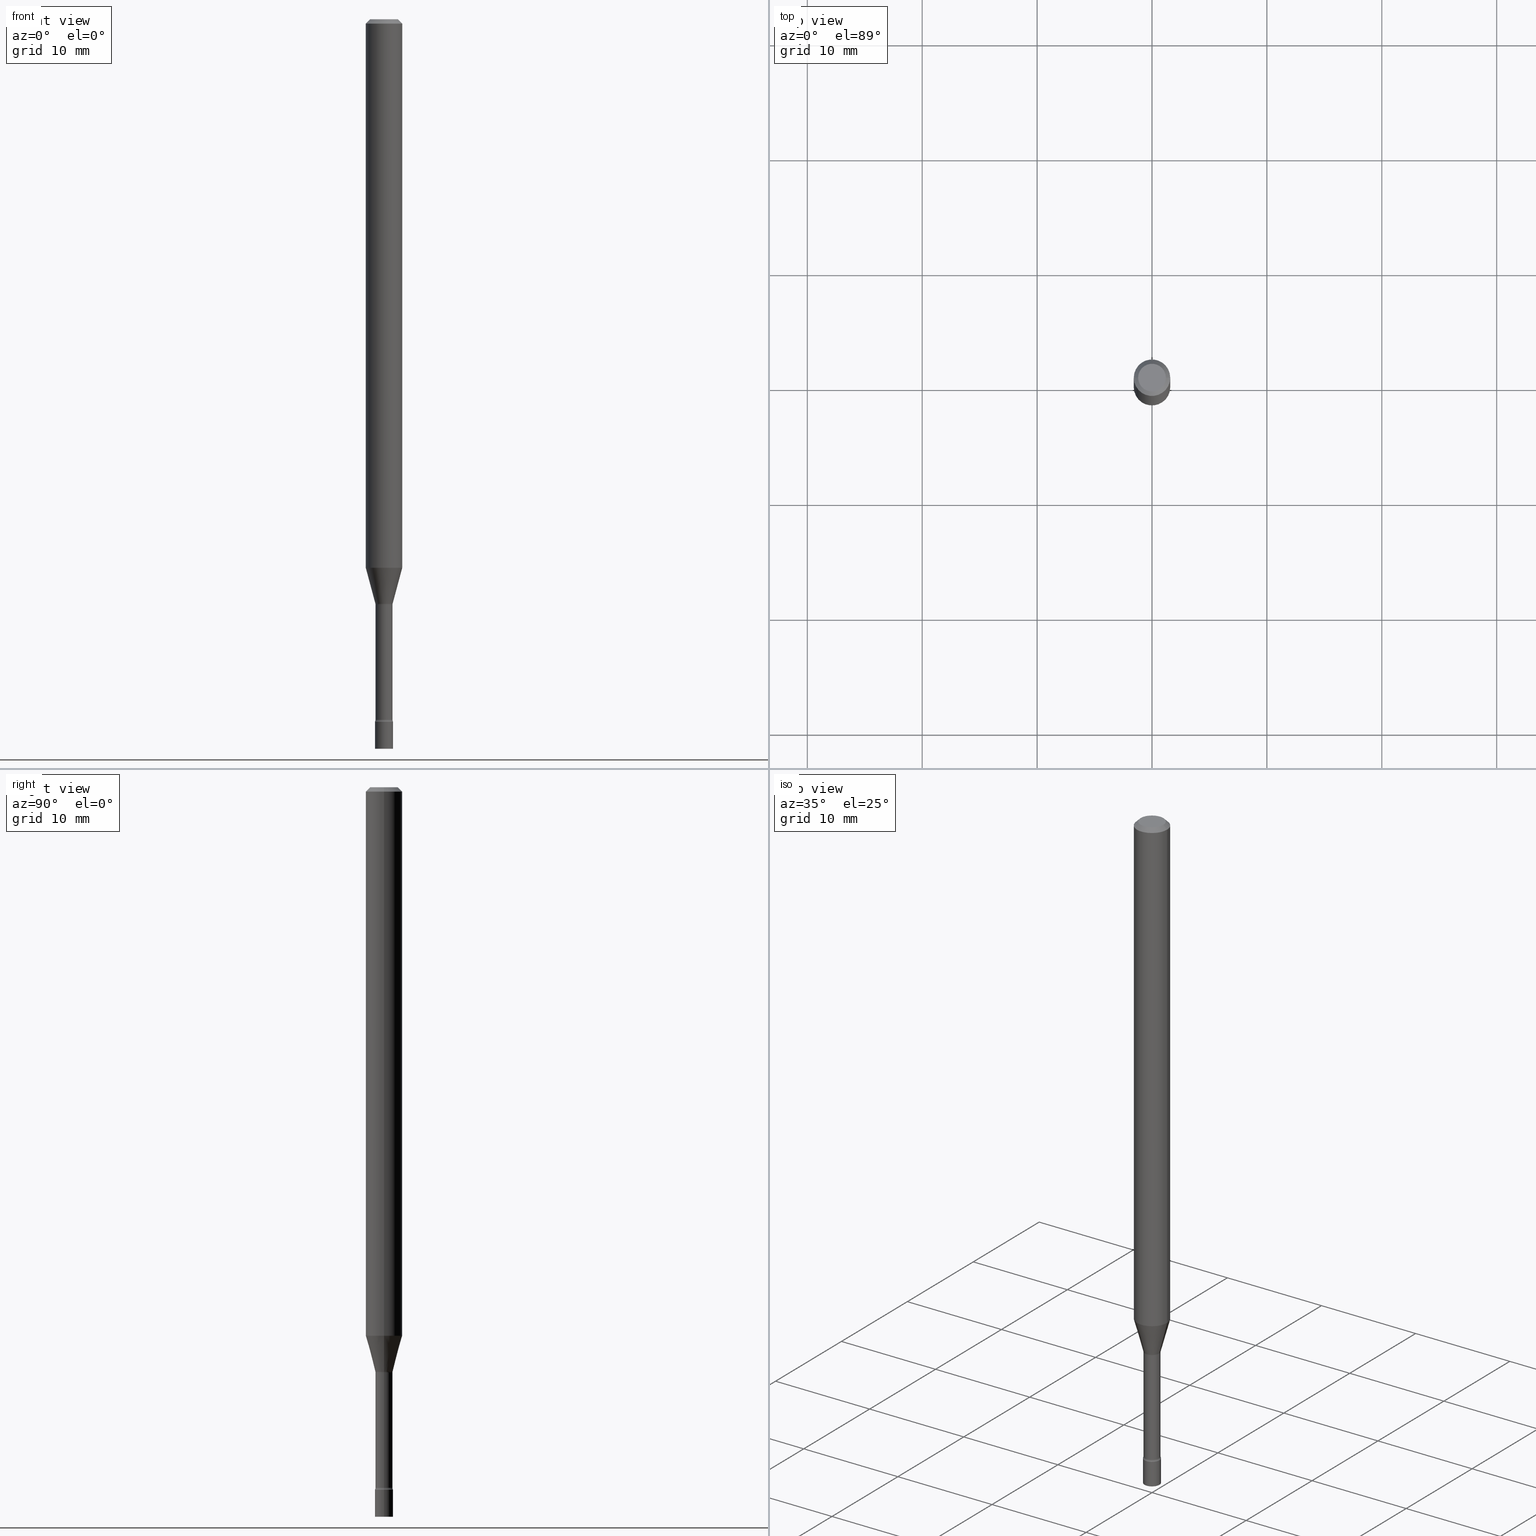
[diagram: canonical four-view strip — front | top / right | iso, engineering-drawing reading convention]
A machine part, canonical four-view strip (front | top / right | iso — engineering-drawing reading convention). The complete STEP part file that produces these views, byte-faithful:
ISO-10303-21;
HEADER;
FILE_DESCRIPTION (( 'STEP AP203' ),
    '1' );
FILE_NAME ('09692.STEP',
    '2024-03-09T00:53:26',
    ( '' ),
    ( '' ),
    'SwSTEP 2.0',
    'SolidWorks 2023',
    '' );
FILE_SCHEMA (( 'CONFIG_CONTROL_DESIGN' ));
ENDSEC;

DATA;
#1 = EDGE_LOOP ( 'NONE', ( #254, #405 ) ) ;
#2 = DIRECTION ( 'NONE',  ( 1.000000000000000000, -6.982962677686266711E-15, 0.000000000000000000 ) ) ;
#3 = DIRECTION ( 'NONE',  ( -2.445468806185136597E-29, 3.491481338843145583E-15, 1.000000000000000000 ) ) ;
#4 = APPROVAL_DATE_TIME ( #408, #460 ) ;
#5 = ORIENTED_EDGE ( 'NONE', *, *, #244, .T. ) ;
#6 = CARTESIAN_POINT ( 'NONE',  ( 7.070806723891919892E-46, -1.009523804376275404E-31, -2.891391092786900929E-17 ) ) ;
#7 = PERSON_AND_ORGANIZATION_ROLE ( 'classification_officer' ) ;
#8 = CIRCLE ( 'NONE', #73, 0.02914999999999999883 ) ;
#9 = EDGE_LOOP ( 'NONE', ( #376, #499, #269, #226 ) ) ;
#10 = CARTESIAN_POINT ( 'NONE',  ( 4.896054760217936554E-29, -6.990268608628051909E-15, -2.002092501787273271 ) ) ;
#11 = PERSON_AND_ORGANIZATION ( #447, #80 ) ;
#12 = ORIENTED_EDGE ( 'NONE', *, *, #281, .F. ) ;
#13 = ORIENTED_EDGE ( 'NONE', *, *, #507, .F. ) ;
#14 = DIRECTION ( 'NONE',  ( -2.445468806185136877E-29, 3.491481338843145188E-15, 1.000000000000000000 ) ) ;
#15 = EDGE_LOOP ( 'NONE', ( #123, #12, #459, #349 ) ) ;
#16 = DIRECTION ( 'NONE',  ( -2.445468806185136597E-29, 3.491481338843145583E-15, 1.000000000000000000 ) ) ;
#17 = CC_DESIGN_DATE_AND_TIME_ASSIGNMENT ( #330, #370, ( #365 ) ) ;
#18 =( LENGTH_UNIT ( ) NAMED_UNIT ( * ) SI_UNIT ( $, .METRE. ) );
#19 = VECTOR ( 'NONE', #69, 39.37007874015748143 ) ;
#20 = ORIENTED_EDGE ( 'NONE', *, *, #479, .T. ) ;
#21 = DIRECTION ( 'NONE',  ( 1.000000000000000000, -6.982962677686266711E-15, 0.000000000000000000 ) ) ;
#22 = EDGE_LOOP ( 'NONE', ( #170, #389 ) ) ;
#23 = ORIENTED_EDGE ( 'NONE', *, *, #480, .F. ) ;
#24 = DIRECTION ( 'NONE',  ( 7.105427357601001859E-15, 1.000000000000000000, -3.491481338843145583E-15 ) ) ;
#25 = DIRECTION ( 'NONE',  ( 1.000000000000000000, -6.982962677686270655E-15, 0.000000000000000000 ) ) ;
#26 = DIRECTION ( 'NONE',  ( -2.445468806185136597E-29, 3.491481338843145583E-15, 1.000000000000000000 ) ) ;
#27 = CARTESIAN_POINT ( 'NONE',  ( 0.02966111260566397720, -7.197391050932053160E-15, -2.002092501787273271 ) ) ;
#28 = DIRECTION ( 'NONE',  ( 1.000000000000000000, -6.982962677686269077E-15, 0.000000000000000000 ) ) ;
#29 = VERTEX_POINT ( 'NONE', #339 ) ;
#30 = CONICAL_SURFACE ( 'NONE', #164, 0.06250000000000000000, 0.7853981633974483900 ) ;
#31 = CC_DESIGN_PERSON_AND_ORGANIZATION_ASSIGNMENT ( #192, #473, ( #76 ) ) ;
#32 = LOCAL_TIME ( 19, 53, 26.00000000000000000, #128 ) ;
#33 = APPROVAL_DATE_TIME ( #287, #267 ) ;
#34 = ADVANCED_FACE ( 'NONE', ( #144 ), #445, .F. ) ;
#35 = CARTESIAN_POINT ( 'NONE',  ( 5.886243416487624138E-29, -8.403995582595452657E-15, -2.407000000000000473 ) ) ;
#36 = CIRCLE ( 'NONE', #79, 0.02966111260566397720 ) ;
#37 = AXIS2_PLACEMENT_3D ( 'NONE', #135, #24, #362 ) ;
#38 = VERTEX_POINT ( 'NONE', #489 ) ;
#39 = DIRECTION ( 'NONE',  ( 1.000000000000000000, 0.000000000000000000, 0.000000000000000000 ) ) ;
#40 = CARTESIAN_POINT ( 'NONE',  ( 0.06250000000000000000, -6.998800405626513309E-15, -1.879536105567578552 ) ) ;
#41 = COORDINATED_UNIVERSAL_TIME_OFFSET ( 5, 0, .BEHIND. ) ;
#42 = CC_DESIGN_PERSON_AND_ORGANIZATION_ASSIGNMENT ( #74, #514, ( #54 ) ) ;
#43 = AXIS2_PLACEMENT_3D ( 'NONE', #131, #110, #300 ) ;
#44 = FACE_OUTER_BOUND ( 'NONE', #9, .T. ) ;
#45 = ORIENTED_EDGE ( 'NONE', *, *, #306, .T. ) ;
#46 = DATE_AND_TIME ( #49, #227 ) ;
#47 = ORIENTED_EDGE ( 'NONE', *, *, #216, .T. ) ;
#48 = FACE_OUTER_BOUND ( 'NONE', #218, .T. ) ;
#49 = CALENDAR_DATE ( 2024, 8, 3 ) ;
#50 = EDGE_LOOP ( 'NONE', ( #414, #266, #210, #383 ) ) ;
#51 = EDGE_CURVE ( 'NONE', #57, #454, #379, .T. ) ;
#52 = VERTEX_POINT ( 'NONE', #456 ) ;
#53 = COORDINATED_UNIVERSAL_TIME_OFFSET ( 5, 0, .BEHIND. ) ;
#54 = PRODUCT ( '09692', '09692', '', ( #196 ) ) ;
#55 = VERTEX_POINT ( 'NONE', #354 ) ;
#56 = CYLINDRICAL_SURFACE ( 'NONE', #403, 0.03099999999999999978 ) ;
#57 = VERTEX_POINT ( 'NONE', #186 ) ;
#58 = ORIENTED_EDGE ( 'NONE', *, *, #323, .F. ) ;
#59 = EDGE_CURVE ( 'NONE', #62, #496, #505, .T. ) ;
#60 = PLANE ( 'NONE',  #294 ) ;
#61 = EDGE_LOOP ( 'NONE', ( #277, #295, #173, #168 ) ) ;
#62 = VERTEX_POINT ( 'NONE', #351 ) ;
#63 = CARTESIAN_POINT ( 'NONE',  ( 4.596346916264206982E-29, -6.562365238271120851E-15, -1.879536105567578552 ) ) ;
#64 = CIRCLE ( 'NONE', #85, 0.06250000000000000000 ) ;
#65 = CIRCLE ( 'NONE', #259, 0.06250000000000000000 ) ;
#66 = APPROVAL_PERSON_ORGANIZATION ( #167, #460, #415 ) ;
#67 = VERTEX_POINT ( 'NONE', #346 ) ;
#68 = DIRECTION ( 'NONE',  ( 1.000000000000000000, -6.982962677686270655E-15, 0.000000000000000000 ) ) ;
#69 = DIRECTION ( 'NONE',  ( -2.445468806185136877E-29, 3.491481338843145188E-15, 1.000000000000000000 ) ) ;
#70 = FACE_OUTER_BOUND ( 'NONE', #130, .T. ) ;
#71 = ADVANCED_FACE ( 'NONE', ( #105 ), #506, .F. ) ;
#72 = ORIENTED_EDGE ( 'NONE', *, *, #59, .F. ) ;
#73 = AXIS2_PLACEMENT_3D ( 'NONE', #461, #352, #100 ) ;
#74 = PERSON_AND_ORGANIZATION ( #447, #80 ) ;
#75 = FACE_OUTER_BOUND ( 'NONE', #378, .T. ) ;
#76 = PRODUCT_DEFINITION ( 'UNKNOWN', '', #241, #149 ) ;
#77 = EDGE_CURVE ( 'NONE', #55, #454, #65, .T. ) ;
#78 = ADVANCED_BREP_SHAPE_REPRESENTATION ( '09692', ( #400, #242, #108 ), #260 ) ;
#79 = AXIS2_PLACEMENT_3D ( 'NONE', #10, #172, #338 ) ;
#80 = ORGANIZATION ( 'UNSPECIFIED', 'UNSPECIFIED', '' ) ;
#81 = FACE_OUTER_BOUND ( 'NONE', #141, .T. ) ;
#82 = EDGE_CURVE ( 'NONE', #385, #215, #427, .T. ) ;
#83 = CARTESIAN_POINT ( 'NONE',  ( 0.04415000000000000174, -7.312121338839591070E-15, -2.005974787463811193 ) ) ;
#84 = PRODUCT_DEFINITION_SHAPE ( 'NONE', 'NONE',  #76 ) ;
#85 = AXIS2_PLACEMENT_3D ( 'NONE', #204, #336, #2 ) ;
#86 = CARTESIAN_POINT ( 'NONE',  ( 3.668203209277712094E-31, -5.237222008264728876E-17, -0.01500000000000003067 ) ) ;
#87 = DATE_TIME_ROLE ( 'creation_date' ) ;
#88 = CIRCLE ( 'NONE', #296, 0.03099999999999999978 ) ;
#89 = EDGE_CURVE ( 'NONE', #308, #487, #96, .T. ) ;
#90 = ADVANCED_FACE ( 'NONE', ( #468 ), #359, .F. ) ;
#91 = APPROVAL_ROLE ( '' ) ;
#92 = ORIENTED_EDGE ( 'NONE', *, *, #341, .F. ) ;
#93 = VERTEX_POINT ( 'NONE', #442 ) ;
#94 = CARTESIAN_POINT ( 'NONE',  ( 4.905548768736609857E-29, -7.003823536619741706E-15, -2.005974787463811193 ) ) ;
#95 = DIRECTION ( 'NONE',  ( -2.445468806185136597E-29, 3.491481338843145583E-15, 1.000000000000000000 ) ) ;
#96 = CIRCLE ( 'NONE', #326, 0.03099999999999999978 ) ;
#97 = ORIENTED_EDGE ( 'NONE', *, *, #298, .T. ) ;
#98 = ADVANCED_FACE ( 'NONE', ( #252 ), #411, .T. ) ;
#99 = CARTESIAN_POINT ( 'NONE',  ( 4.905548768736609857E-29, -7.003823536619741706E-15, -2.005974787463811193 ) ) ;
#100 = DIRECTION ( 'NONE',  ( 1.000000000000000000, -6.982962677686268288E-15, 0.000000000000000000 ) ) ;
#101 = DIRECTION ( 'NONE',  ( -0.7071067811865475727, 2.468850131082257455E-15, -0.7071067811865474617 ) ) ;
#102 = DIRECTION ( 'NONE',  ( 1.000000000000000000, -6.982962677686268288E-15, 4.883557194083113462E-29 ) ) ;
#103 = DIRECTION ( 'NONE',  ( 1.000000000000000000, -6.982962677686266711E-15, 4.876176775795935793E-29 ) ) ;
#104 = ORIENTED_EDGE ( 'NONE', *, *, #328, .T. ) ;
#105 = FACE_OUTER_BOUND ( 'NONE', #371, .T. ) ;
#106 = CARTESIAN_POINT ( 'NONE',  ( -0.06250000000000000000, 4.440892098500626162E-16, -3.074334431409316114E-30 ) ) ;
#107 = AXIS2_PLACEMENT_3D ( 'NONE', #374, #3, #163 ) ;
#108 = AXIS2_PLACEMENT_3D ( 'NONE', #394, #151, #39 ) ;
#109 = DIRECTION ( 'NONE',  ( -2.445468806185136597E-29, 3.491481338843145583E-15, 1.000000000000000000 ) ) ;
#110 = DIRECTION ( 'NONE',  ( 7.105427357601001859E-15, 1.000000000000000000, -3.491481338843145583E-15 ) ) ;
#111 = EDGE_CURVE ( 'NONE', #38, #52, #240, .T. ) ;
#112 =( NAMED_UNIT ( * ) SI_UNIT ( $, .STERADIAN. ) SOLID_ANGLE_UNIT ( ) );
#113 = CC_DESIGN_PERSON_AND_ORGANIZATION_ASSIGNMENT ( #366, #299, ( #241 ) ) ;
#114 = VECTOR ( 'NONE', #290, 39.37007874015748143 ) ;
#115 = CIRCLE ( 'NONE', #404, 0.03099999999999999978 ) ;
#116 = DIRECTION ( 'NONE',  ( -2.445468806185136597E-29, 3.491481338843145583E-15, 1.000000000000000000 ) ) ;
#117 = CLOSED_SHELL ( 'NONE', ( #71, #138, #392, #406, #511, #289, #307, #197, #150, #334, #191, #34, #393, #90 ) ) ;
#118 = VECTOR ( 'NONE', #429, 39.37007874015748143 ) ;
#119 = EDGE_CURVE ( 'NONE', #308, #255, #402, .T. ) ;
#120 = CARTESIAN_POINT ( 'NONE',  ( 5.886243416487624138E-29, -8.403995582595452657E-15, -2.407000000000000473 ) ) ;
#121 = DIRECTION ( 'NONE',  ( -2.445468806185136597E-29, 3.491481338843145583E-15, 1.000000000000000000 ) ) ;
#122 = LINE ( 'NONE', #169, #391 ) ;
#123 = ORIENTED_EDGE ( 'NONE', *, *, #479, .F. ) ;
#124 = CARTESIAN_POINT ( 'NONE',  ( 5.886243416487624138E-29, -8.403995582595452657E-15, -2.407000000000000473 ) ) ;
#125 = CALENDAR_DATE ( 2024, 8, 3 ) ;
#126 = ORIENTED_EDGE ( 'NONE', *, *, #469, .T. ) ;
#127 = AXIS2_PLACEMENT_3D ( 'NONE', #94, #314, #490 ) ;
#128 = COORDINATED_UNIVERSAL_TIME_OFFSET ( 5, 0, .BEHIND. ) ;
#129 = CC_DESIGN_APPROVAL ( #460, ( #365 ) ) ;
#130 = EDGE_LOOP ( 'NONE', ( #433, #448, #345, #342 ) ) ;
#131 = CARTESIAN_POINT ( 'NONE',  ( -0.04415000000000000174, -6.690118918781657314E-15, -2.005974787463811193 ) ) ;
#132 = EDGE_LOOP ( 'NONE', ( #450, #45, #228, #481 ) ) ;
#133 = EDGE_CURVE ( 'NONE', #487, #308, #157, .T. ) ;
#134 = ORIENTED_EDGE ( 'NONE', *, *, #341, .T. ) ;
#135 = CARTESIAN_POINT ( 'NONE',  ( -0.04415000000000000174, -8.065094779726618869E-15, -2.399783525791635341 ) ) ;
#136 = DIRECTION ( 'NONE',  ( -2.445468806185136597E-29, 3.491481338843145583E-15, 1.000000000000000000 ) ) ;
#137 = VECTOR ( 'NONE', #14, 39.37007874015748143 ) ;
#138 = ADVANCED_FACE ( 'NONE', ( #44 ), #202, .T. ) ;
#139 = DIRECTION ( 'NONE',  ( -2.445468806185136597E-29, 3.491481338843145583E-15, 1.000000000000000000 ) ) ;
#140 = FACE_OUTER_BOUND ( 'NONE', #246, .T. ) ;
#141 = EDGE_LOOP ( 'NONE', ( #72, #177, #238, #143 ) ) ;
#142 = CYLINDRICAL_SURFACE ( 'NONE', #189, 0.06250000000000000000 ) ;
#143 = ORIENTED_EDGE ( 'NONE', *, *, #216, .F. ) ;
#144 = FACE_OUTER_BOUND ( 'NONE', #301, .T. ) ;
#145 = CARTESIAN_POINT ( 'NONE',  ( 4.896054760217936554E-29, -6.990268608628051909E-15, -2.002092501787273271 ) ) ;
#146 = AXIS2_PLACEMENT_3D ( 'NONE', #174, #181, #271 ) ;
#147 = VECTOR ( 'NONE', #101, 39.37007874015748143 ) ;
#148 = CARTESIAN_POINT ( 'NONE',  ( 6.113672015462842613E-29, -8.728703347107864943E-15, -2.500000000000000000 ) ) ;
#149 = DESIGN_CONTEXT ( 'detailed design', #158, 'design' ) ;
#150 = ADVANCED_FACE ( 'NONE', ( #443 ), #30, .T. ) ;
#151 = DIRECTION ( 'NONE',  ( 0.000000000000000000, 0.000000000000000000, 1.000000000000000000 ) ) ;
#152 = APPLICATION_PROTOCOL_DEFINITION ( 'international standard', 'config_control_design', 1994, #158 ) ;
#153 = DIRECTION ( 'NONE',  ( -2.445468806185136597E-29, 3.491481338843145583E-15, 1.000000000000000000 ) ) ;
#154 = ORIENTED_EDGE ( 'NONE', *, *, #244, .F. ) ;
#155 = ADVANCED_FACE ( 'NONE', ( #48 ), #166, .T. ) ;
#156 = DIRECTION ( 'NONE',  ( 1.000000000000000000, -6.982962677686270655E-15, 0.000000000000000000 ) ) ;
#157 = CIRCLE ( 'NONE', #273, 0.03099999999999999978 ) ;
#158 = APPLICATION_CONTEXT ( 'configuration controlled 3d designs of mechanical parts and assemblies' ) ;
#159 = CARTESIAN_POINT ( 'NONE',  ( -0.02966111260566397720, -6.779513727662883321E-15, -2.002092501787273271 ) ) ;
#160 = DIRECTION ( 'NONE',  ( -2.445468806185136597E-29, 3.491481338843145583E-15, 1.000000000000000000 ) ) ;
#161 = VERTEX_POINT ( 'NONE', #178 ) ;
#162 = PLANE ( 'NONE',  #146 ) ;
#163 = DIRECTION ( 'NONE',  ( 1.000000000000000000, -6.982962677686264344E-15, 4.883557194083112340E-29 ) ) ;
#164 = AXIS2_PLACEMENT_3D ( 'NONE', #86, #412, #367 ) ;
#165 = AXIS2_PLACEMENT_3D ( 'NONE', #234, #26, #497 ) ;
#166 = PLANE ( 'NONE',  #235 ) ;
#167 = PERSON_AND_ORGANIZATION ( #447, #80 ) ;
#168 = ORIENTED_EDGE ( 'NONE', *, *, #401, .F. ) ;
#169 = CARTESIAN_POINT ( 'NONE',  ( 0.06250000000000000000, -4.811533449433680977E-16, -0.01500000000000003067 ) ) ;
#170 = ORIENTED_EDGE ( 'NONE', *, *, #281, .T. ) ;
#171 = CARTESIAN_POINT ( 'NONE',  ( 5.886243416487624138E-29, -8.403995582595452657E-15, -2.407000000000000473 ) ) ;
#172 = DIRECTION ( 'NONE',  ( -2.445468806185136597E-29, 3.491481338843145583E-15, 1.000000000000000000 ) ) ;
#173 = ORIENTED_EDGE ( 'NONE', *, *, #318, .T. ) ;
#174 = CARTESIAN_POINT ( 'NONE',  ( 3.316907271900976096E-16, 0.04749999999999999362, -1.803023190589839165E-16 ) ) ;
#175 = LINE ( 'NONE', #106, #396 ) ;
#176 = EDGE_CURVE ( 'NONE', #67, #161, #424, .T. ) ;
#177 = ORIENTED_EDGE ( 'NONE', *, *, #426, .T. ) ;
#178 = CARTESIAN_POINT ( 'NONE',  ( 0.06250000000000000000, -4.888073874380389458E-16, -0.01500000000000003067 ) ) ;
#179 = CIRCLE ( 'NONE', #517, 0.02915000000000000577 ) ;
#180 = CARTESIAN_POINT ( 'NONE',  ( 5.868595753920427457E-29, -8.378799397564702473E-15, -2.399783525791635341 ) ) ;
#181 = DIRECTION ( 'NONE',  ( 2.438088387897960049E-29, -3.491481338843145188E-15, -1.000000000000000000 ) ) ;
#182 = LINE ( 'NONE', #377, #137 ) ;
#183 = ORIENTED_EDGE ( 'NONE', *, *, #280, .T. ) ;
#184 = ADVANCED_FACE ( 'NONE', ( #70 ), #421, .T. ) ;
#185 = ADVANCED_FACE ( 'NONE', ( #344 ), #56, .T. ) ;
#186 = CARTESIAN_POINT ( 'NONE',  ( 0.02966111260566397720, -7.197391050932053160E-15, -2.002092501787273271 ) ) ;
#187 = CARTESIAN_POINT ( 'NONE',  ( 7.070806723891919892E-46, -1.009523804376275404E-31, -2.891391092786900929E-17 ) ) ;
#188 = ORIENTED_EDGE ( 'NONE', *, *, #51, .F. ) ;
#189 = AXIS2_PLACEMENT_3D ( 'NONE', #457, #136, #103 ) ;
#190 = EDGE_CURVE ( 'NONE', #385, #62, #179, .T. ) ;
#191 = ADVANCED_FACE ( 'NONE', ( #140 ), #60, .F. ) ;
#192 = PERSON_AND_ORGANIZATION ( #447, #80 ) ;
#193 = CARTESIAN_POINT ( 'NONE',  ( 4.896054760217936554E-29, -6.990268608628051909E-15, -2.002092501787273271 ) ) ;
#194 = DIRECTION ( 'NONE',  ( 2.445468806185136597E-29, -3.491481338843145583E-15, -1.000000000000000000 ) ) ;
#195 = AXIS2_PLACEMENT_3D ( 'NONE', #292, #160, #332 ) ;
#196 = MECHANICAL_CONTEXT ( 'NONE', #347, 'mechanical' ) ;
#197 = ADVANCED_FACE ( 'NONE', ( #220 ), #142, .T. ) ;
#198 = CARTESIAN_POINT ( 'NONE',  ( 3.668203209277712094E-31, -5.237222008264728876E-17, -0.01500000000000003067 ) ) ;
#199 = DIRECTION ( 'NONE',  ( -2.445468806185136877E-29, 3.491481338843145188E-15, 1.000000000000000000 ) ) ;
#200 = APPROVAL_PERSON_ORGANIZATION ( #319, #267, #320 ) ;
#201 = EDGE_CURVE ( 'NONE', #454, #55, #302, .T. ) ;
#202 = CYLINDRICAL_SURFACE ( 'NONE', #195, 0.02915000000000000230 ) ;
#203 = CALENDAR_DATE ( 2024, 8, 3 ) ;
#204 = CARTESIAN_POINT ( 'NONE',  ( 3.668203209277712094E-31, -5.237222008264728876E-17, -0.01500000000000003067 ) ) ;
#205 = CARTESIAN_POINT ( 'NONE',  ( -0.03099999999999999978, 2.202682480856310560E-16, -1.524869877979020612E-30 ) ) ;
#206 = PERSON_AND_ORGANIZATION_ROLE ( 'design_supplier' ) ;
#207 = ORIENTED_EDGE ( 'NONE', *, *, #77, .T. ) ;
#208 = DIRECTION ( 'NONE',  ( -2.438088387897960049E-29, 3.491481338843145188E-15, 1.000000000000000000 ) ) ;
#209 = SECURITY_CLASSIFICATION_LEVEL ( 'unclassified' ) ;
#210 = ORIENTED_EDGE ( 'NONE', *, *, #480, .T. ) ;
#211 = ORIENTED_EDGE ( 'NONE', *, *, #201, .F. ) ;
#212 = AXIS2_PLACEMENT_3D ( 'NONE', #99, #310, #270 ) ;
#213 = LOCAL_TIME ( 19, 53, 26.00000000000000000, #375 ) ;
#214 = CALENDAR_DATE ( 2024, 8, 3 ) ;
#215 = VERTEX_POINT ( 'NONE', #348 ) ;
#216 = EDGE_CURVE ( 'NONE', #496, #215, #8, .T. ) ;
#217 = DIRECTION ( 'NONE',  ( 1.000000000000000000, -6.982962677686262766E-15, 0.000000000000000000 ) ) ;
#218 = EDGE_LOOP ( 'NONE', ( #420, #331 ) ) ;
#219 = ORIENTED_EDGE ( 'NONE', *, *, #236, .F. ) ;
#220 = FACE_OUTER_BOUND ( 'NONE', #373, .T. ) ;
#221 = DIRECTION ( 'NONE',  ( -2.445468806185136597E-29, 3.491481338843145583E-15, 1.000000000000000000 ) ) ;
#222 = EDGE_LOOP ( 'NONE', ( #501, #5, #419, #219 ) ) ;
#223 = CARTESIAN_POINT ( 'NONE',  ( 0.000000000000000000, 0.000000000000000000, 0.000000000000000000 ) ) ;
#224 = VECTOR ( 'NONE', #313, 39.37007874015747433 ) ;
#225 = AXIS2_PLACEMENT_3D ( 'NONE', #193, #358, #28 ) ;
#226 = ORIENTED_EDGE ( 'NONE', *, *, #82, .F. ) ;
#227 = LOCAL_TIME ( 19, 53, 26.00000000000000000, #484 ) ;
#228 = ORIENTED_EDGE ( 'NONE', *, *, #51, .T. ) ;
#229 = DIRECTION ( 'NONE',  ( 1.000000000000000000, -6.982962677686266711E-15, 4.876176775795935232E-29 ) ) ;
#230 = CARTESIAN_POINT ( 'NONE',  ( 0.03099999999999999978, -8.945175190116139274E-15, -2.500000000000000000 ) ) ;
#231 = ORIENTED_EDGE ( 'NONE', *, *, #368, .T. ) ;
#232 = CARTESIAN_POINT ( 'NONE',  ( 0.000000000000000000, 0.000000000000000000, 0.000000000000000000 ) ) ;
#233 = DIRECTION ( 'NONE',  ( 1.000000000000000000, -6.982962677686270655E-15, 0.000000000000000000 ) ) ;
#234 = CARTESIAN_POINT ( 'NONE',  ( 4.896054760217936554E-29, -6.990268608628051909E-15, -2.002092501787273271 ) ) ;
#235 = AXIS2_PLACEMENT_3D ( 'NONE', #337, #384, #268 ) ;
#236 = EDGE_CURVE ( 'NONE', #454, #161, #182, .T. ) ;
#237 = CYLINDRICAL_SURFACE ( 'NONE', #285, 0.02915000000000000230 ) ;
#238 = ORIENTED_EDGE ( 'NONE', *, *, #82, .T. ) ;
#239 = CARTESIAN_POINT ( 'NONE',  ( 0.000000000000000000, 0.000000000000000000, 0.000000000000000000 ) ) ;
#240 = CIRCLE ( 'NONE', #390, 0.04749999999999999362 ) ;
#241 = PRODUCT_DEFINITION_FORMATION_WITH_SPECIFIED_SOURCE ( 'ANY', '', #54, .NOT_KNOWN. ) ;
#242 = MANIFOLD_SOLID_BREP ( 'Body-Move/Copy2[2]', #117 ) ;
#243 = DIRECTION ( 'NONE',  ( 1.000000000000000000, -6.982962677686266711E-15, 4.876176775795936353E-29 ) ) ;
#244 = EDGE_CURVE ( 'NONE', #55, #67, #175, .T. ) ;
#245 = VECTOR ( 'NONE', #199, 39.37007874015748143 ) ;
#246 = EDGE_LOOP ( 'NONE', ( #58, #502 ) ) ;
#247 = DIRECTION ( 'NONE',  ( 1.000000000000000000, -6.982962677686270655E-15, 0.000000000000000000 ) ) ;
#248 = LOCAL_TIME ( 19, 53, 26.00000000000000000, #41 ) ;
#249 = SHAPE_DEFINITION_REPRESENTATION ( #84, #78 ) ;
#250 = DIRECTION ( 'NONE',  ( -6.982962677686266711E-15, -1.000000000000000000, 3.491481338843145583E-15 ) ) ;
#251 = EDGE_LOOP ( 'NONE', ( #409, #20, #104, #13 ) ) ;
#252 = FACE_OUTER_BOUND ( 'NONE', #1, .T. ) ;
#253 = DIRECTION ( 'NONE',  ( -2.445468806185136597E-29, 3.491481338843145583E-15, 1.000000000000000000 ) ) ;
#254 = ORIENTED_EDGE ( 'NONE', *, *, #257, .T. ) ;
#255 = VERTEX_POINT ( 'NONE', #264 ) ;
#256 = PERSON_AND_ORGANIZATION ( #447, #80 ) ;
#257 = EDGE_CURVE ( 'NONE', #386, #255, #372, .T. ) ;
#258 = ORIENTED_EDGE ( 'NONE', *, *, #426, .F. ) ;
#259 = AXIS2_PLACEMENT_3D ( 'NONE', #423, #109, #275 ) ;
#260 =( GEOMETRIC_REPRESENTATION_CONTEXT ( 3 ) GLOBAL_UNCERTAINTY_ASSIGNED_CONTEXT ( ( #434 ) ) GLOBAL_UNIT_ASSIGNED_CONTEXT ( ( #492, #422, #112 ) ) REPRESENTATION_CONTEXT ( 'NONE', 'WORKASPACE' ) );
#261 = DIRECTION ( 'NONE',  ( 1.000000000000000000, -6.982962677686266711E-15, 4.876176775795935232E-29 ) ) ;
#262 = ORIENTED_EDGE ( 'NONE', *, *, #280, .F. ) ;
#263 = DIMENSIONAL_EXPONENTS ( 1.000000000000000000, 0.000000000000000000, 0.000000000000000000, 0.000000000000000000, 0.000000000000000000, 0.000000000000000000, 0.000000000000000000 ) ;
#264 = CARTESIAN_POINT ( 'NONE',  ( -0.03099999999999999978, -8.346081216766027547E-15, -2.407000000000000473 ) ) ;
#265 = CYLINDRICAL_SURFACE ( 'NONE', #446, 0.06250000000000000000 ) ;
#266 = ORIENTED_EDGE ( 'NONE', *, *, #512, .F. ) ;
#267 = APPROVAL ( #399, 'UNSPECIFIED' ) ;
#268 = DIRECTION ( 'NONE',  ( -1.000000000000000000, 6.982962677686265922E-15, -4.876176775795935793E-29 ) ) ;
#269 = ORIENTED_EDGE ( 'NONE', *, *, #335, .F. ) ;
#270 = DIRECTION ( 'NONE',  ( 1.000000000000000000, -6.982962677686264344E-15, 4.883557194083112340E-29 ) ) ;
#271 = DIRECTION ( 'NONE',  ( -1.000000000000000000, 6.982962677686265922E-15, -4.876176775795935793E-29 ) ) ;
#272 = DIRECTION ( 'NONE',  ( -2.445468806185136877E-29, 3.491481338843145188E-15, 1.000000000000000000 ) ) ;
#273 = AXIS2_PLACEMENT_3D ( 'NONE', #329, #121, #520 ) ;
#274 = CIRCLE ( 'NONE', #472, 0.02915000000000000577 ) ;
#275 = DIRECTION ( 'NONE',  ( 1.000000000000000000, -6.982962677686262766E-15, 0.000000000000000000 ) ) ;
#276 = FACE_OUTER_BOUND ( 'NONE', #381, .T. ) ;
#277 = ORIENTED_EDGE ( 'NONE', *, *, #119, .F. ) ;
#278 = CIRCLE ( 'NONE', #43, 0.01500000000000002720 ) ;
#279 = CC_DESIGN_SECURITY_CLASSIFICATION ( #365, ( #241 ) ) ;
#280 = EDGE_CURVE ( 'NONE', #385, #29, #416, .T. ) ;
#281 = EDGE_CURVE ( 'NONE', #52, #38, #431, .T. ) ;
#282 = ORIENTED_EDGE ( 'NONE', *, *, #190, .F. ) ;
#283 = DIRECTION ( 'NONE',  ( -2.445468806185136597E-29, 3.491481338843145583E-15, 1.000000000000000000 ) ) ;
#284 = AXIS2_PLACEMENT_3D ( 'NONE', #309, #311, #428 ) ;
#285 = AXIS2_PLACEMENT_3D ( 'NONE', #239, #153, #243 ) ;
#286 = LINE ( 'NONE', #482, #245 ) ;
#287 = DATE_AND_TIME ( #324, #248 ) ;
#288 = CARTESIAN_POINT ( 'NONE',  ( 5.868595753920427457E-29, -8.378799397564700895E-15, -2.399783525791634897 ) ) ;
#289 = ADVANCED_FACE ( 'NONE', ( #276 ), #493, .T. ) ;
#290 = DIRECTION ( 'NONE',  ( -2.445468806185136877E-29, 3.491481338843145188E-15, 1.000000000000000000 ) ) ;
#291 = DIRECTION ( 'NONE',  ( -2.445468806185136597E-29, 3.491481338843145583E-15, 1.000000000000000000 ) ) ;
#292 = CARTESIAN_POINT ( 'NONE',  ( 0.000000000000000000, 0.000000000000000000, 0.000000000000000000 ) ) ;
#293 = AXIS2_PLACEMENT_3D ( 'NONE', #124, #291, #247 ) ;
#294 = AXIS2_PLACEMENT_3D ( 'NONE', #304, #380, #417 ) ;
#295 = ORIENTED_EDGE ( 'NONE', *, *, #89, .T. ) ;
#296 = AXIS2_PLACEMENT_3D ( 'NONE', #35, #116, #156 ) ;
#297 = CARTESIAN_POINT ( 'NONE',  ( -0.03099999999999999978, -8.346081216766027547E-15, -2.500000000000000000 ) ) ;
#298 = EDGE_CURVE ( 'NONE', #452, #496, #278, .T. ) ;
#299 = PERSON_AND_ORGANIZATION_ROLE ( 'creator' ) ;
#300 = DIRECTION ( 'NONE',  ( -1.000000000000000000, 7.105427357600978193E-15, 0.000000000000000000 ) ) ;
#301 = EDGE_LOOP ( 'NONE', ( #92, #282, #183, #513 ) ) ;
#302 = CIRCLE ( 'NONE', #356, 0.06250000000000000000 ) ;
#303 = AXIS2_PLACEMENT_3D ( 'NONE', #477, #437, #361 ) ;
#304 = CARTESIAN_POINT ( 'NONE',  ( 2.164718430083331013E-16, 0.03099999999999159331, -2.407000000000000473 ) ) ;
#305 = ORIENTED_EDGE ( 'NONE', *, *, #176, .F. ) ;
#306 = EDGE_CURVE ( 'NONE', #452, #57, #36, .T. ) ;
#307 = ADVANCED_FACE ( 'NONE', ( #449 ), #343, .T. ) ;
#308 = VERTEX_POINT ( 'NONE', #297 ) ;
#309 = CARTESIAN_POINT ( 'NONE',  ( 3.668203209277712094E-31, -5.237222008264728876E-17, -0.01500000000000003067 ) ) ;
#310 = DIRECTION ( 'NONE',  ( -2.445468806185136597E-29, 3.491481338843145583E-15, 1.000000000000000000 ) ) ;
#311 = DIRECTION ( 'NONE',  ( -2.445468806185136597E-29, 3.491481338843145583E-15, 1.000000000000000000 ) ) ;
#312 = LENGTH_MEASURE_WITH_UNIT ( LENGTH_MEASURE( 0.02539999999999999897 ), #18 );
#313 = DIRECTION ( 'NONE',  ( 0.2588190451025214611, 1.565188264969621573E-15, 0.9659258262890682012 ) ) ;
#314 = DIRECTION ( 'NONE',  ( -2.445468806185136597E-29, 3.491481338843145583E-15, 1.000000000000000000 ) ) ;
#315 = DIRECTION ( 'NONE',  ( -2.445468806185136597E-29, 3.491481338843145583E-15, 1.000000000000000000 ) ) ;
#316 = AXIS2_PLACEMENT_3D ( 'NONE', #145, #315, #467 ) ;
#317 = DIRECTION ( 'NONE',  ( -2.445468806185136597E-29, 3.491481338843145583E-15, 1.000000000000000000 ) ) ;
#318 = EDGE_CURVE ( 'NONE', #487, #386, #286, .T. ) ;
#319 = PERSON_AND_ORGANIZATION ( #447, #80 ) ;
#320 = APPROVAL_ROLE ( '' ) ;
#321 = CIRCLE ( 'NONE', #293, 0.03099999999999999978 ) ;
#322 = DIRECTION ( 'NONE',  ( 1.000000000000000000, -6.982962677686270655E-15, 0.000000000000000000 ) ) ;
#323 = EDGE_CURVE ( 'NONE', #29, #93, #321, .T. ) ;
#324 = CALENDAR_DATE ( 2024, 8, 3 ) ;
#325 = DIRECTION ( 'NONE',  ( -1.000000000000000000, 6.982962677686266711E-15, 0.000000000000000000 ) ) ;
#326 = AXIS2_PLACEMENT_3D ( 'NONE', #148, #317, #233 ) ;
#327 = CC_DESIGN_APPROVAL ( #498, ( #241 ) ) ;
#328 = EDGE_CURVE ( 'NONE', #161, #67, #64, .T. ) ;
#329 = CARTESIAN_POINT ( 'NONE',  ( 6.113672015462842613E-29, -8.728703347107864943E-15, -2.500000000000000000 ) ) ;
#330 = DATE_AND_TIME ( #125, #213 ) ;
#331 = ORIENTED_EDGE ( 'NONE', *, *, #89, .F. ) ;
#332 = DIRECTION ( 'NONE',  ( 1.000000000000000000, -6.982962677686266711E-15, 4.876176775795936353E-29 ) ) ;
#333 = ORIENTED_EDGE ( 'NONE', *, *, #512, .T. ) ;
#334 = ADVANCED_FACE ( 'NONE', ( #410 ), #162, .F. ) ;
#335 = EDGE_CURVE ( 'NONE', #215, #496, #509, .T. ) ;
#336 = DIRECTION ( 'NONE',  ( -2.445468806185136597E-29, 3.491481338843145583E-15, 1.000000000000000000 ) ) ;
#337 = CARTESIAN_POINT ( 'NONE',  ( 2.164718430083353692E-16, 0.03099999999999127065, -2.500000000000000000 ) ) ;
#338 = DIRECTION ( 'NONE',  ( 1.000000000000000000, -6.982962677686269077E-15, 0.000000000000000000 ) ) ;
#339 = CARTESIAN_POINT ( 'NONE',  ( 0.03099999999999999978, -8.620467425603726988E-15, -2.407000000000000473 ) ) ;
#340 = CARTESIAN_POINT ( 'NONE',  ( 0.04415000000000000174, -8.687097199784551836E-15, -2.399783525791635341 ) ) ;
#341 = EDGE_CURVE ( 'NONE', #62, #93, #435, .T. ) ;
#342 = ORIENTED_EDGE ( 'NONE', *, *, #318, .F. ) ;
#343 = CONICAL_SURFACE ( 'NONE', #225, 0.02966111260566397720, 0.2617993877991501295 ) ;
#344 = FACE_OUTER_BOUND ( 'NONE', #61, .T. ) ;
#345 = ORIENTED_EDGE ( 'NONE', *, *, #257, .F. ) ;
#346 = CARTESIAN_POINT ( 'NONE',  ( -0.06250000000000000000, -2.863279519326821546E-15, -0.01500000000000003067 ) ) ;
#347 = APPLICATION_CONTEXT ( 'configuration controlled 3d designs of mechanical parts and assemblies' ) ;
#348 = CARTESIAN_POINT ( 'NONE',  ( 0.02914999999999999883, -7.207376898674296122E-15, -2.005974787463811193 ) ) ;
#349 = ORIENTED_EDGE ( 'NONE', *, *, #176, .T. ) ;
#350 = APPLICATION_PROTOCOL_DEFINITION ( 'international standard', 'config_control_design', 1994, #347 ) ;
#351 = CARTESIAN_POINT ( 'NONE',  ( -0.02915000000000000577, -8.177701762300226909E-15, -2.399783525791634897 ) ) ;
#352 = DIRECTION ( 'NONE',  ( -2.445468806185136597E-29, 3.491481338843145583E-15, 1.000000000000000000 ) ) ;
#353 = CARTESIAN_POINT ( 'NONE',  ( -0.02914999999999999883, -7.484188259618152031E-15, -2.005974787463811193 ) ) ;
#354 = CARTESIAN_POINT ( 'NONE',  ( -0.06250000000000000000, -6.118276028421058235E-15, -1.879536105567578552 ) ) ;
#355 = CLOSED_SHELL ( 'NONE', ( #184, #98, #185, #155 ) ) ;
#356 = AXIS2_PLACEMENT_3D ( 'NONE', #63, #387, #217 ) ;
#357 = CARTESIAN_POINT ( 'NONE',  ( 0.02915000000000000577, -8.582352759619256888E-15, -2.399783525791634897 ) ) ;
#358 = DIRECTION ( 'NONE',  ( -2.445468806185136597E-29, 3.491481338843145583E-15, 1.000000000000000000 ) ) ;
#359 = TOROIDAL_SURFACE ( 'NONE', #107, 0.04415000000000000174, 0.01500000000000002720 ) ;
#360 = LOCAL_TIME ( 19, 53, 26.00000000000000000, #53 ) ;
#361 = DIRECTION ( 'NONE',  ( 1.000000000000000000, -6.982962677686268288E-15, 4.883557194083113462E-29 ) ) ;
#362 = DIRECTION ( 'NONE',  ( -1.000000000000000000, 7.105427357600993970E-15, 0.000000000000000000 ) ) ;
#363 = APPROVAL_STATUS ( 'not_yet_approved' ) ;
#364 = AXIS2_PLACEMENT_3D ( 'NONE', #171, #208, #478 ) ;
#365 = SECURITY_CLASSIFICATION ( '', '', #209 ) ;
#366 = PERSON_AND_ORGANIZATION ( #447, #80 ) ;
#367 = DIRECTION ( 'NONE',  ( -1.000000000000000000, 6.982962677686266711E-15, 0.000000000000000000 ) ) ;
#368 = EDGE_CURVE ( 'NONE', #93, #29, #88, .T. ) ;
#369 = DIRECTION ( 'NONE',  ( 1.000000000000000000, -6.982962677686255667E-15, 0.000000000000000000 ) ) ;
#370 = DATE_TIME_ROLE ( 'classification_date' ) ;
#371 = EDGE_LOOP ( 'NONE', ( #418, #97, #47, #23 ) ) ;
#372 = CIRCLE ( 'NONE', #485, 0.03099999999999999978 ) ;
#373 = EDGE_LOOP ( 'NONE', ( #154, #207, #462, #305 ) ) ;
#374 = CARTESIAN_POINT ( 'NONE',  ( 4.905548768736609857E-29, -7.003823536619741706E-15, -2.005974787463811193 ) ) ;
#375 = COORDINATED_UNIVERSAL_TIME_OFFSET ( 5, 0, .BEHIND. ) ;
#376 = ORIENTED_EDGE ( 'NONE', *, *, #190, .T. ) ;
#377 = CARTESIAN_POINT ( 'NONE',  ( 0.06250000000000000000, -4.364351673553916694E-16, 3.047610484872459871E-30 ) ) ;
#378 = EDGE_LOOP ( 'NONE', ( #258, #134, #231, #262 ) ) ;
#379 = LINE ( 'NONE', #27, #224 ) ;
#380 = DIRECTION ( 'NONE',  ( -2.438088387897960049E-29, 3.491481338843145188E-15, 1.000000000000000000 ) ) ;
#381 = EDGE_LOOP ( 'NONE', ( #333, #126, #211, #188 ) ) ;
#382 = FACE_OUTER_BOUND ( 'NONE', #222, .T. ) ;
#383 = ORIENTED_EDGE ( 'NONE', *, *, #335, .T. ) ;
#384 = DIRECTION ( 'NONE',  ( 2.438088387897960049E-29, -3.491481338843145188E-15, -1.000000000000000000 ) ) ;
#385 = VERTEX_POINT ( 'NONE', #357 ) ;
#386 = VERTEX_POINT ( 'NONE', #508 ) ;
#387 = DIRECTION ( 'NONE',  ( -2.445468806185136597E-29, 3.491481338843145583E-15, 1.000000000000000000 ) ) ;
#388 = CARTESIAN_POINT ( 'NONE',  ( 0.02915000000000000230, -2.035533620545546870E-16, 1.421405530144515533E-30 ) ) ;
#389 = ORIENTED_EDGE ( 'NONE', *, *, #111, .T. ) ;
#390 = AXIS2_PLACEMENT_3D ( 'NONE', #6, #253, #407 ) ;
#391 = VECTOR ( 'NONE', #440, 39.37007874015748143 ) ;
#392 = ADVANCED_FACE ( 'NONE', ( #75 ), #518, .F. ) ;
#393 = ADVANCED_FACE ( 'NONE', ( #81 ), #237, .T. ) ;
#394 = CARTESIAN_POINT ( 'NONE',  ( 0.000000000000000000, 0.000000000000000000, 0.000000000000000000 ) ) ;
#395 = DIRECTION ( 'NONE',  ( 1.000000000000000000, -6.982962677686266711E-15, 0.000000000000000000 ) ) ;
#396 = VECTOR ( 'NONE', #272, 39.37007874015748143 ) ;
#397 = VECTOR ( 'NONE', #470, 39.37007874015747433 ) ;
#398 = CARTESIAN_POINT ( 'NONE',  ( -0.02966111260566397720, -6.448894878041971172E-15, -2.002092501787273271 ) ) ;
#399 = APPROVAL_STATUS ( 'not_yet_approved' ) ;
#400 = MANIFOLD_SOLID_BREP ( 'Body-Move/Copy2[1]', #355 ) ;
#401 = EDGE_CURVE ( 'NONE', #255, #386, #115, .T. ) ;
#402 = LINE ( 'NONE', #205, #114 ) ;
#403 = AXIS2_PLACEMENT_3D ( 'NONE', #223, #500, #261 ) ;
#404 = AXIS2_PLACEMENT_3D ( 'NONE', #120, #283, #322 ) ;
#405 = ORIENTED_EDGE ( 'NONE', *, *, #401, .T. ) ;
#406 = ADVANCED_FACE ( 'NONE', ( #474 ), #476, .T. ) ;
#407 = DIRECTION ( 'NONE',  ( 1.000000000000000000, -6.982962677686267499E-15, 4.876681293081646444E-29 ) ) ;
#408 = DATE_AND_TIME ( #203, #360 ) ;
#409 = ORIENTED_EDGE ( 'NONE', *, *, #111, .F. ) ;
#410 = FACE_OUTER_BOUND ( 'NONE', #22, .T. ) ;
#411 = PLANE ( 'NONE',  #364 ) ;
#412 = DIRECTION ( 'NONE',  ( 2.445468806185136597E-29, -3.491481338843145583E-15, -1.000000000000000000 ) ) ;
#413 = DATE_AND_TIME ( #214, #32 ) ;
#414 = ORIENTED_EDGE ( 'NONE', *, *, #298, .F. ) ;
#415 = APPROVAL_ROLE ( '' ) ;
#416 = CIRCLE ( 'NONE', #465, 0.01499999999999999424 ) ;
#417 = DIRECTION ( 'NONE',  ( 1.000000000000000000, -6.982962677686265922E-15, 4.876176775795935793E-29 ) ) ;
#418 = ORIENTED_EDGE ( 'NONE', *, *, #306, .F. ) ;
#419 = ORIENTED_EDGE ( 'NONE', *, *, #328, .F. ) ;
#420 = ORIENTED_EDGE ( 'NONE', *, *, #133, .F. ) ;
#421 = CYLINDRICAL_SURFACE ( 'NONE', #471, 0.03099999999999999978 ) ;
#422 =( NAMED_UNIT ( * ) PLANE_ANGLE_UNIT ( ) SI_UNIT ( $, .RADIAN. ) );
#423 = CARTESIAN_POINT ( 'NONE',  ( 4.596346916264206982E-29, -6.562365238271120851E-15, -1.879536105567578552 ) ) ;
#424 = CIRCLE ( 'NONE', #284, 0.06250000000000000000 ) ;
#425 = CARTESIAN_POINT ( 'NONE',  ( 5.886243416487624138E-29, -8.403995582595452657E-15, -2.407000000000000473 ) ) ;
#426 = EDGE_CURVE ( 'NONE', #62, #385, #274, .T. ) ;
#427 = LINE ( 'NONE', #388, #19 ) ;
#428 = DIRECTION ( 'NONE',  ( 1.000000000000000000, -6.982962677686266711E-15, 0.000000000000000000 ) ) ;
#429 = DIRECTION ( 'NONE',  ( -2.445468806185136877E-29, 3.491481338843145188E-15, 1.000000000000000000 ) ) ;
#430 = CC_DESIGN_PERSON_AND_ORGANIZATION_ASSIGNMENT ( #439, #7, ( #365 ) ) ;
#431 = CIRCLE ( 'NONE', #475, 0.04749999999999999362 ) ;
#432 = AXIS2_PLACEMENT_3D ( 'NONE', #83, #250, #369 ) ;
#433 = ORIENTED_EDGE ( 'NONE', *, *, #133, .T. ) ;
#434 = UNCERTAINTY_MEASURE_WITH_UNIT (LENGTH_MEASURE( 1.000000000000000082E-05 ), #492, 'distance_accuracy_value', 'NONE');
#435 = CIRCLE ( 'NONE', #37, 0.01499999999999999424 ) ;
#436 = CIRCLE ( 'NONE', #165, 0.02966111260566397720 ) ;
#437 = DIRECTION ( 'NONE',  ( -2.445468806185136597E-29, 3.491481338843145583E-15, 1.000000000000000000 ) ) ;
#438 = LINE ( 'NONE', #159, #397 ) ;
#439 = PERSON_AND_ORGANIZATION ( #447, #80 ) ;
#440 = DIRECTION ( 'NONE',  ( 0.7071067811865475727, -7.319954787623256045E-15, -0.7071067811865474617 ) ) ;
#441 = PRODUCT_RELATED_PRODUCT_CATEGORY ( 'detail', '', ( #54 ) ) ;
#442 = CARTESIAN_POINT ( 'NONE',  ( -0.03099999999999999978, -8.183727334509820615E-15, -2.407000000000000473 ) ) ;
#443 = FACE_OUTER_BOUND ( 'NONE', #15, .T. ) ;
#444 = APPROVAL_DATE_TIME ( #46, #498 ) ;
#445 = TOROIDAL_SURFACE ( 'NONE', #515, 0.04415000000000000174, 0.01499999999999999424 ) ;
#446 = AXIS2_PLACEMENT_3D ( 'NONE', #504, #221, #463 ) ;
#447 = PERSON ( 'UNSPECIFIED', 'UNSPECIFIED', 'UNSPECIFIED', ('UNSPECIFIED'), ('UNSPECIFIED'), ('UNSPECIFIED') ) ;
#448 = ORIENTED_EDGE ( 'NONE', *, *, #119, .T. ) ;
#449 = FACE_OUTER_BOUND ( 'NONE', #132, .T. ) ;
#450 = ORIENTED_EDGE ( 'NONE', *, *, #469, .F. ) ;
#451 = CC_DESIGN_PERSON_AND_ORGANIZATION_ASSIGNMENT ( #11, #206, ( #241 ) ) ;
#452 = VERTEX_POINT ( 'NONE', #398 ) ;
#453 = DIRECTION ( 'NONE',  ( -2.445468806185136597E-29, 3.491481338843145583E-15, 1.000000000000000000 ) ) ;
#454 = VERTEX_POINT ( 'NONE', #40 ) ;
#455 = CARTESIAN_POINT ( 'NONE',  ( -0.06250000000000000000, 3.840629472727443437E-16, -0.01500000000000003067 ) ) ;
#456 = CARTESIAN_POINT ( 'NONE',  ( -0.04749999999999999362, 3.578768372314209027E-16, -2.891391092787141902E-17 ) ) ;
#457 = CARTESIAN_POINT ( 'NONE',  ( 0.000000000000000000, 0.000000000000000000, 0.000000000000000000 ) ) ;
#458 = LINE ( 'NONE', #455, #147 ) ;
#459 = ORIENTED_EDGE ( 'NONE', *, *, #507, .T. ) ;
#460 = APPROVAL ( #483, 'UNSPECIFIED' ) ;
#461 = CARTESIAN_POINT ( 'NONE',  ( 4.905548768736609857E-29, -7.003823536619741706E-15, -2.005974787463811193 ) ) ;
#462 = ORIENTED_EDGE ( 'NONE', *, *, #236, .T. ) ;
#463 = DIRECTION ( 'NONE',  ( 1.000000000000000000, -6.982962677686266711E-15, 4.876176775795935793E-29 ) ) ;
#464 = CARTESIAN_POINT ( 'NONE',  ( -0.02915000000000000230, 2.071232074740692205E-16, -1.433869578809305304E-30 ) ) ;
#465 = AXIS2_PLACEMENT_3D ( 'NONE', #340, #491, #25 ) ;
#466 = CC_DESIGN_APPROVAL ( #267, ( #76 ) ) ;
#467 = DIRECTION ( 'NONE',  ( 1.000000000000000000, -6.982962677686269077E-15, 0.000000000000000000 ) ) ;
#468 = FACE_OUTER_BOUND ( 'NONE', #50, .T. ) ;
#469 = EDGE_CURVE ( 'NONE', #452, #55, #438, .T. ) ;
#470 = DIRECTION ( 'NONE',  ( -0.2588190451025214611, 5.211531920934551042E-15, 0.9659258262890682012 ) ) ;
#471 = AXIS2_PLACEMENT_3D ( 'NONE', #232, #95, #229 ) ;
#472 = AXIS2_PLACEMENT_3D ( 'NONE', #288, #519, #395 ) ;
#473 = PERSON_AND_ORGANIZATION_ROLE ( 'creator' ) ;
#474 = FACE_OUTER_BOUND ( 'NONE', #251, .T. ) ;
#475 = AXIS2_PLACEMENT_3D ( 'NONE', #187, #453, #503 ) ;
#476 = CONICAL_SURFACE ( 'NONE', #510, 0.06250000000000000000, 0.7853981633974483900 ) ;
#477 = CARTESIAN_POINT ( 'NONE',  ( 5.868595753920427457E-29, -8.378799397564702473E-15, -2.399783525791635341 ) ) ;
#478 = DIRECTION ( 'NONE',  ( 1.000000000000000000, -6.982962677686265922E-15, 4.876176775795935793E-29 ) ) ;
#479 = EDGE_CURVE ( 'NONE', #38, #161, #122, .T. ) ;
#480 = EDGE_CURVE ( 'NONE', #57, #215, #486, .T. ) ;
#481 = ORIENTED_EDGE ( 'NONE', *, *, #77, .F. ) ;
#482 = CARTESIAN_POINT ( 'NONE',  ( 0.03099999999999999978, -2.164718430082742572E-16, 1.511614800496739984E-30 ) ) ;
#483 = APPROVAL_STATUS ( 'not_yet_approved' ) ;
#484 = COORDINATED_UNIVERSAL_TIME_OFFSET ( 5, 0, .BEHIND. ) ;
#485 = AXIS2_PLACEMENT_3D ( 'NONE', #425, #488, #68 ) ;
#486 = CIRCLE ( 'NONE', #432, 0.01500000000000002720 ) ;
#487 = VERTEX_POINT ( 'NONE', #230 ) ;
#488 = DIRECTION ( 'NONE',  ( -2.445468806185136597E-29, 3.491481338843145583E-15, 1.000000000000000000 ) ) ;
#489 = CARTESIAN_POINT ( 'NONE',  ( 0.04749999999999999362, -4.035134999187579609E-16, -2.891391092786643933E-17 ) ) ;
#490 = DIRECTION ( 'NONE',  ( 1.000000000000000000, -6.982962677686268288E-15, 0.000000000000000000 ) ) ;
#491 = DIRECTION ( 'NONE',  ( -6.982962677686266711E-15, -1.000000000000000000, 3.491481338843145583E-15 ) ) ;
#492 =( CONVERSION_BASED_UNIT ( 'INCH', #312 ) LENGTH_UNIT ( ) NAMED_UNIT ( #263 ) );
#493 = CONICAL_SURFACE ( 'NONE', #316, 0.02966111260566397720, 0.2617993877991501295 ) ;
#494 = APPROVAL_PERSON_ORGANIZATION ( #256, #498, #91 ) ;
#495 = CARTESIAN_POINT ( 'NONE',  ( 5.868595753920427457E-29, -8.378799397564700895E-15, -2.399783525791634897 ) ) ;
#496 = VERTEX_POINT ( 'NONE', #353 ) ;
#497 = DIRECTION ( 'NONE',  ( 1.000000000000000000, -6.982962677686269077E-15, 0.000000000000000000 ) ) ;
#498 = APPROVAL ( #363, 'UNSPECIFIED' ) ;
#499 = ORIENTED_EDGE ( 'NONE', *, *, #59, .T. ) ;
#500 = DIRECTION ( 'NONE',  ( -2.445468806185136597E-29, 3.491481338843145583E-15, 1.000000000000000000 ) ) ;
#501 = ORIENTED_EDGE ( 'NONE', *, *, #201, .T. ) ;
#502 = ORIENTED_EDGE ( 'NONE', *, *, #368, .F. ) ;
#503 = DIRECTION ( 'NONE',  ( 1.000000000000000000, -6.982962677686267499E-15, 4.876681293081646444E-29 ) ) ;
#504 = CARTESIAN_POINT ( 'NONE',  ( 0.000000000000000000, 0.000000000000000000, 0.000000000000000000 ) ) ;
#505 = LINE ( 'NONE', #464, #118 ) ;
#506 = TOROIDAL_SURFACE ( 'NONE', #212, 0.04415000000000000174, 0.01500000000000002720 ) ;
#507 = EDGE_CURVE ( 'NONE', #52, #67, #458, .T. ) ;
#508 = CARTESIAN_POINT ( 'NONE',  ( 0.03099999999999999978, -8.620467425603726988E-15, -2.407000000000000473 ) ) ;
#509 = CIRCLE ( 'NONE', #127, 0.02914999999999999883 ) ;
#510 = AXIS2_PLACEMENT_3D ( 'NONE', #198, #194, #325 ) ;
#511 = ADVANCED_FACE ( 'NONE', ( #382 ), #265, .T. ) ;
#512 = EDGE_CURVE ( 'NONE', #57, #452, #436, .T. ) ;
#513 = ORIENTED_EDGE ( 'NONE', *, *, #323, .T. ) ;
#514 = PERSON_AND_ORGANIZATION_ROLE ( 'design_owner' ) ;
#515 = AXIS2_PLACEMENT_3D ( 'NONE', #180, #139, #102 ) ;
#516 = CC_DESIGN_DATE_AND_TIME_ASSIGNMENT ( #413, #87, ( #76 ) ) ;
#517 = AXIS2_PLACEMENT_3D ( 'NONE', #495, #16, #21 ) ;
#518 = TOROIDAL_SURFACE ( 'NONE', #303, 0.04415000000000000174, 0.01499999999999999424 ) ;
#519 = DIRECTION ( 'NONE',  ( -2.445468806185136597E-29, 3.491481338843145583E-15, 1.000000000000000000 ) ) ;
#520 = DIRECTION ( 'NONE',  ( 1.000000000000000000, -6.982962677686270655E-15, 0.000000000000000000 ) ) ;
ENDSEC;
END-ISO-10303-21;
